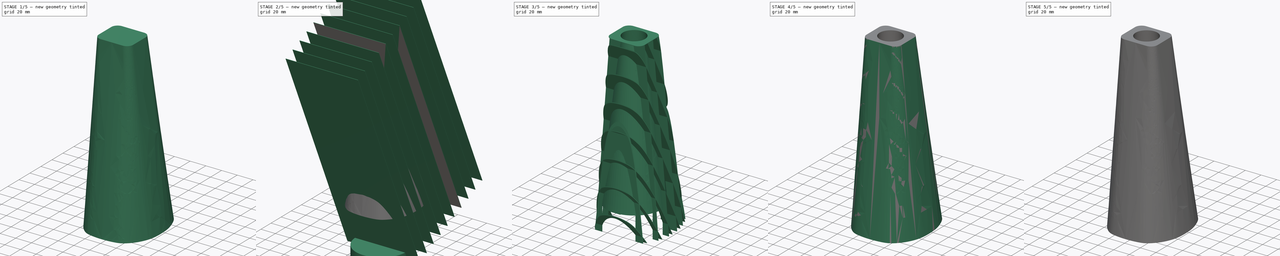
[diagram: build sequence overview — one tinted view per stage of 5, left to right]
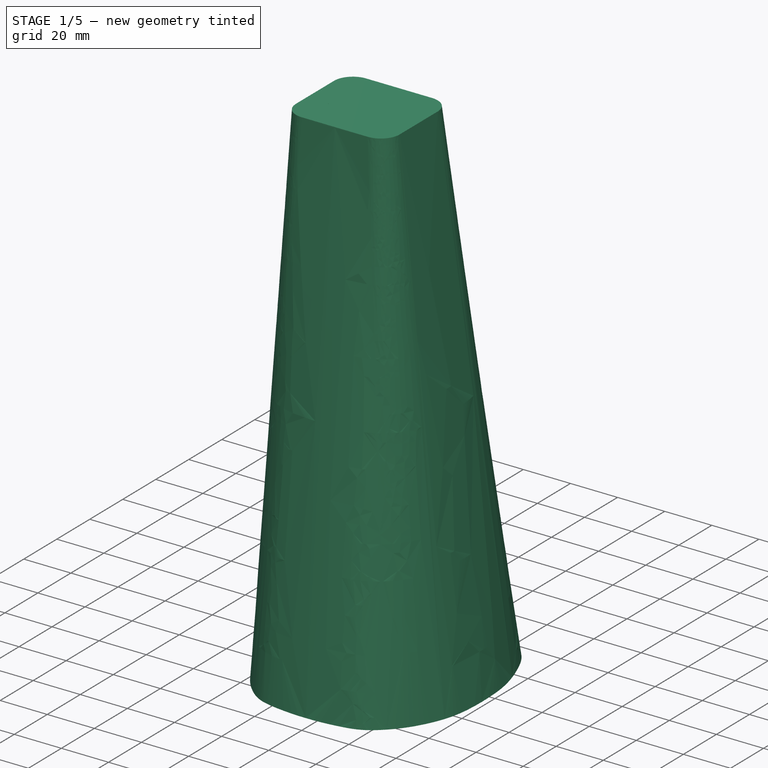
[diagram: stage 1 of 5 — iso view after this stage's code; geometry added in this stage tinted green]
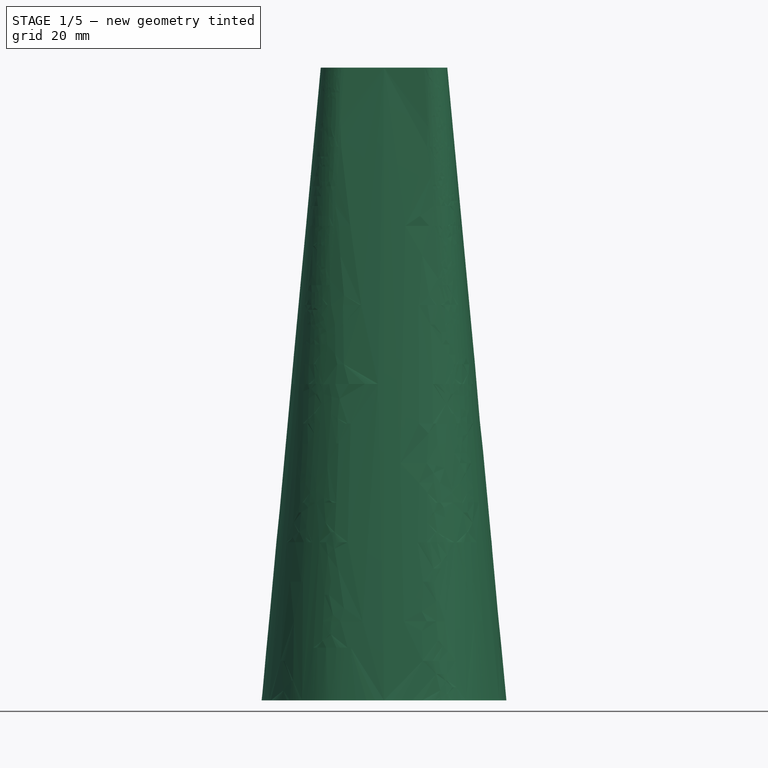
[diagram: stage 1 of 5 — front view after this stage's code; geometry added in this stage tinted green]
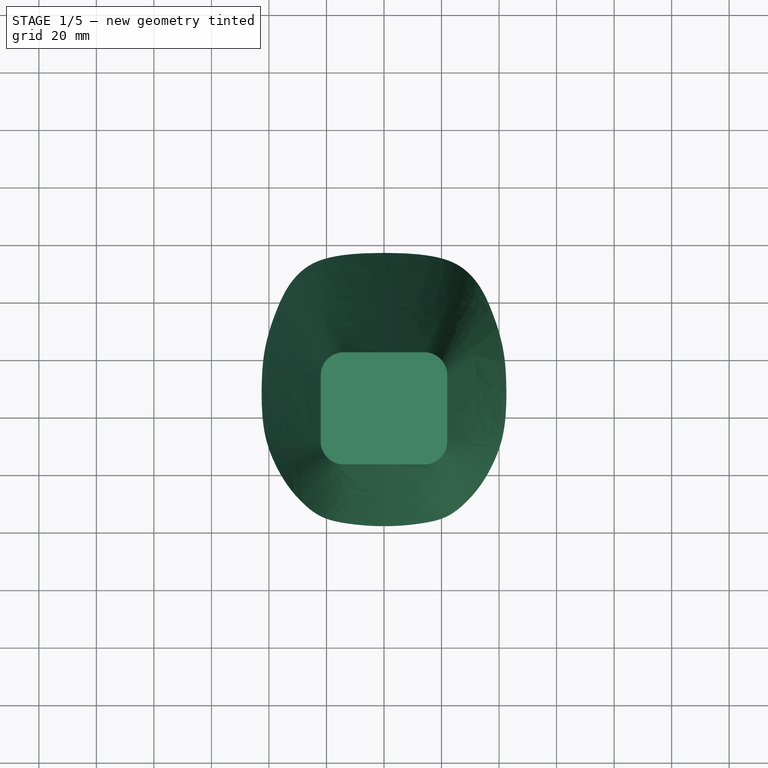
[diagram: stage 1 of 5 — top view after this stage's code; geometry added in this stage tinted green]
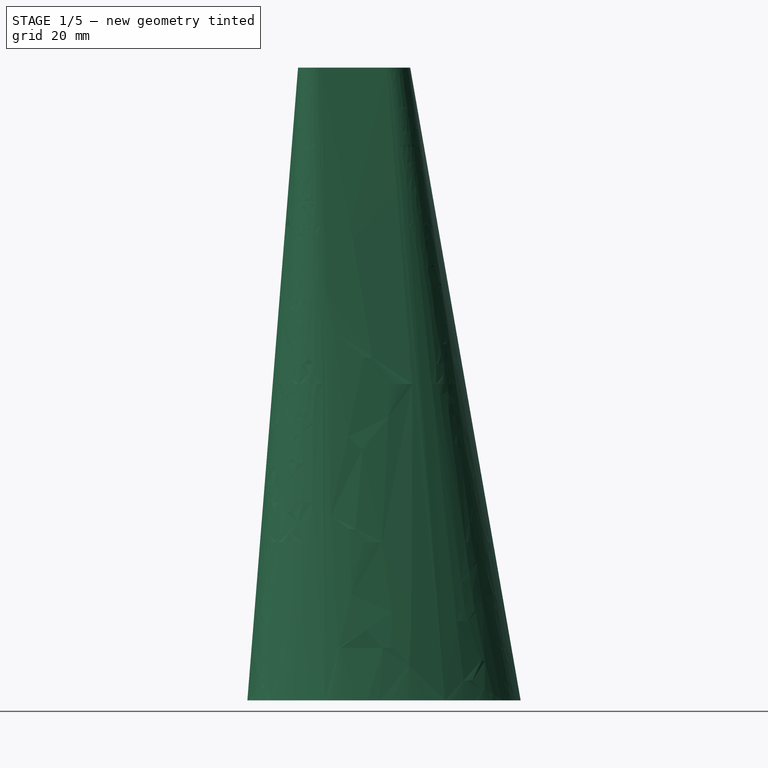
[diagram: stage 1 of 5 — right view after this stage's code; geometry added in this stage tinted green]
FCSTD DOCUMENT  (FreeCAD 0.21R33771 (Git))
Label: tail
License: All rights reserved
LicenseURL: http://en.wikipedia.org/wiki/All_rights_reserved
objects: Sketcher::SketchObject×20, PartDesign::Body×11, PartDesign::AdditiveLoft×7, Part::MultiFuse×6, PartDesign::Pad×4, Part::MultiCommon×4, PartDesign::Thickness×3, Part::Box×3, Part::Cut×3, Part::FeaturePython×2, Image::ImagePlane×1, PartDesign::Pocket×1, App::Part×1
note: 77 computed .brp shape members not serialized (recipe doc carries the construction recipe); baked Part::Feature solids carry a one-line shape summary decoded from their .brp

FEATURE [Sketcher::SketchObject] Sketch020
  AttachmentOffset = pos=(0,0,300) rot=(0,0,1;0rad)
  FullyConstrained = true
  MapMode = 5
  Placement = pos=(0,0,300) rot=(0,0,1;0rad)
  Support = -> [XY_Plane024]
  sketch-geometry (8):
    g0: LineSegment StartX=-14 StartY=19 StartZ=0 EndX=14 EndY=19 EndZ=0
    g1: LineSegment StartX=-14 StartY=-20 StartZ=0 EndX=14 EndY=-20 EndZ=0
    g2: LineSegment StartX=22 StartY=11 StartZ=0 EndX=22 EndY=-12 EndZ=0
    g3: LineSegment StartX=-22 StartY=11 StartZ=0 EndX=-22 EndY=-12 EndZ=0
    g4: ArcOfCircle CenterX=-14 CenterY=11 CenterZ=0 NormalX=0 NormalY=0 NormalZ=1 AngleXU=0 Radius=8 StartAngle=1.5708 EndAngle=3.14159
    g5: ArcOfCircle CenterX=14 CenterY=11 CenterZ=0 NormalX=0 NormalY=0 NormalZ=1 AngleXU=0 Radius=8 StartAngle=0 EndAngle=1.5708
    g6: ArcOfCircle CenterX=14 CenterY=-12 CenterZ=0 NormalX=0 NormalY=0 NormalZ=1 AngleXU=0 Radius=8 StartAngle=4.71239 EndAngle=6.28319
    g7: ArcOfCircle CenterX=-14 CenterY=-12 CenterZ=0 NormalX=0 NormalY=0 NormalZ=1 AngleXU=0 Radius=8 StartAngle=3.14159 EndAngle=4.71239
  constraints (20):
    c: Horizontal(g0)
    c: Horizontal(g1)
    c: Vertical(g2)
    c: Vertical(g3)
    c: Equal(g2,g3)
    c: Tangent(g0,g4) = 1.5708
    c: Tangent(g3,g4) = -1.5708
    c: Tangent(g0,g5) = 1.5708
    c: Tangent(g2,g5) = 1.5708
    c: Tangent(g2,g6) = 1.5708
    c: Tangent(g1,g6) = -1.5708
    c: Tangent(g3,g7) = -1.5708
    c: Tangent(g1,g7) = -1.5708
    c: DistanceX(g0,g-1) = 14
    c: DistanceX(g-1,g0) = 14
    c: DistanceX(g1,g-1) = 14
    c: DistanceX(g-1,g1) = 14
    c: DistanceY(g-1,g0) = 19
    c: DistanceY(g1,g-1) = 20
    c: DistanceX(g3,g-1) = 22
FEATURE [Sketcher::SketchObject] Sketch021
  AttachmentOffset = pos=(0,0,80) rot=(0,0,1;0rad)
  FullyConstrained = false
  MapMode = 5
  Placement = pos=(0,0,80) rot=(0,0,1;0rad)
  Support = -> [XY_Plane015]
  sketch-geometry (28):
    g0-g13: Circle x14 (B-spline internal-alignment scaffolding for g14; pole/knot coordinates omitted)
    g14: BSplineCurve PolesCount=14 KnotsCount=12 Degree=3 IsPeriodic=0
    g15-g26: GeomPoint x12 (B-spline internal-alignment scaffolding for g14; pole/knot coordinates omitted)
    g27: BSplineCurve PolesCount=14 KnotsCount=12 Degree=3 IsPeriodic=0
  constraints (6):
    c: Weight(g0) = 1
    c: PointOnObject(g14,g-2)
    c: Equal(g0, g1-g13) x13
    c: PointOnObject(g14,g-2)
    c: InternalAlignment(g0-g13 -> g14) x14
    c: InternalAlignment(g15-g26 -> g14) x12
FEATURE [PartDesign::AdditiveLoft] AdditiveLoft001
  Closed = false
  Profile = -> Sketch020
  Ruled = false
  Sections = -> [Sketch021]
FEATURE [Sketcher::SketchObject] Sketch022
  AttachmentOffset = pos=(0,0,300) rot=(0,0,1;0rad)
  FullyConstrained = true
  MapMode = 5
  Placement = pos=(0,0,300) rot=(0,0,1;0rad)
  Support = -> [XY_Plane025]
  sketch-geometry (8):
    g0: LineSegment StartX=-14 StartY=19 StartZ=0 EndX=14 EndY=19 EndZ=0
    g1: LineSegment StartX=-14 StartY=-20 StartZ=0 EndX=14 EndY=-20 EndZ=0
    g2: LineSegment StartX=22 StartY=11 StartZ=0 EndX=22 EndY=-12 EndZ=0
    g3: LineSegment StartX=-22 StartY=11 StartZ=0 EndX=-22 EndY=-12 EndZ=0
    g4: ArcOfCircle CenterX=-14 CenterY=11 CenterZ=0 NormalX=0 NormalY=0 NormalZ=1 AngleXU=0 Radius=8 StartAngle=1.5708 EndAngle=3.14159
    g5: ArcOfCircle CenterX=14 CenterY=11 CenterZ=0 NormalX=0 NormalY=0 NormalZ=1 AngleXU=0 Radius=8 StartAngle=0 EndAngle=1.5708
    g6: ArcOfCircle CenterX=14 CenterY=-12 CenterZ=0 NormalX=0 NormalY=0 NormalZ=1 AngleXU=0 Radius=8 StartAngle=4.71239 EndAngle=6.28319
    g7: ArcOfCircle CenterX=-14 CenterY=-12 CenterZ=0 NormalX=0 NormalY=0 NormalZ=1 AngleXU=0 Radius=8 StartAngle=3.14159 EndAngle=4.71239
  constraints (20):
    c: Horizontal(g0)
    c: Horizontal(g1)
    c: Vertical(g2)
    c: Vertical(g3)
    c: Equal(g2,g3)
    c: Tangent(g0,g4) = 1.5708
    c: Tangent(g3,g4) = -1.5708
    c: Tangent(g0,g5) = 1.5708
    c: Tangent(g2,g5) = 1.5708
    c: Tangent(g2,g6) = 1.5708
    c: Tangent(g1,g6) = -1.5708
    c: Tangent(g3,g7) = -1.5708
    c: Tangent(g1,g7) = -1.5708
    c: DistanceX(g0,g-1) = 14
    c: DistanceX(g-1,g0) = 14
    c: DistanceX(g1,g-1) = 14
    c: DistanceX(g-1,g1) = 14
    c: DistanceY(g-1,g0) = 19
    c: DistanceY(g1,g-1) = 20
    c: DistanceX(g3,g-1) = 22
FEATURE [Sketcher::SketchObject] Sketch023
  AttachmentOffset = pos=(0,0,80) rot=(0,0,1;0rad)
  FullyConstrained = false
  MapMode = 5
  Placement = pos=(0,0,80) rot=(0,0,1;0rad)
  Support = -> [XY_Plane016]
  sketch-geometry (28):
    g0-g13: Circle x14 (B-spline internal-alignment scaffolding for g14; pole/knot coordinates omitted)
    g14: BSplineCurve PolesCount=14 KnotsCount=12 Degree=3 IsPeriodic=0
    g15-g26: GeomPoint x12 (B-spline internal-alignment scaffolding for g14; pole/knot coordinates omitted)
    g27: BSplineCurve PolesCount=14 KnotsCount=12 Degree=3 IsPeriodic=0
  constraints (6):
    c: Weight(g0) = 1
    c: PointOnObject(g14,g-2)
    c: Equal(g0, g1-g13) x13
    c: PointOnObject(g14,g-2)
    c: InternalAlignment(g0-g13 -> g14) x14
    c: InternalAlignment(g15-g26 -> g14) x12
FEATURE [PartDesign::AdditiveLoft] AdditiveLoft002
  Closed = false
  Profile = -> Sketch022
  Ruled = false
  Sections = -> [Sketch023]
FEATURE [Sketcher::SketchObject] Sketch031
  AttachmentOffset = pos=(0,0,110) rot=(0,0,1;0rad)
  FullyConstrained = true
  MapMode = 5
  Placement = pos=(0,0,110) rot=(0,0,1;0rad)
  Support = -> [XY_Plane029]
  sketch-geometry (1):
    g0: Circle CenterX=0 CenterY=0 CenterZ=0 NormalX=0 NormalY=0 NormalZ=1 AngleXU=0 Radius=34.62
  constraints (2):
    c: Coincident(g0,g-1)
    c: Radius(g0) = 34.62
FEATURE [Sketcher::SketchObject] Sketch032
  AttachmentOffset = pos=(0,0,300) rot=(0,0,1;0rad)
  FullyConstrained = true
  MapMode = 5
  Placement = pos=(0,0,300) rot=(0,0,1;0rad)
  Support = -> [XY_Plane029]
  sketch-geometry (1):
    g0: Circle CenterX=0 CenterY=0 CenterZ=0 NormalX=0 NormalY=0 NormalZ=1 AngleXU=0 Radius=14
  constraints (2):
    c: Coincident(g0,g-1)
    c: Radius(g0) = 14
FEATURE [PartDesign::AdditiveLoft] AdditiveLoft005
  Closed = false
  Profile = -> Sketch031
  Ruled = false
  Sections = -> [Sketch032]
FEATURE [Part::Box] Box  label="Cube"
  AttacherType = Attacher::AttachEngine3D
  Height = 0.4
  Length = 200
  Placement = pos=(-122,-61,299.6) rot=(0,0,1;0rad)
  Width = 200
FEATURE [Sketcher::SketchObject] Sketch034
  AttachmentOffset = pos=(0,0,80) rot=(0,0,1;0rad)
  FullyConstrained = false
  MapMode = 5
  Placement = pos=(0,0,80) rot=(0,0,1;0rad)
  Support = -> [XY_Plane030]
  sketch-geometry (28):
    g0-g13: Circle x14 (B-spline internal-alignment scaffolding for g14; pole/knot coordinates omitted)
    g14: BSplineCurve PolesCount=14 KnotsCount=12 Degree=3 IsPeriodic=0
    g15-g26: GeomPoint x12 (B-spline internal-alignment scaffolding for g14; pole/knot coordinates omitted)
    g27: BSplineCurve PolesCount=14 KnotsCount=12 Degree=3 IsPeriodic=0
  constraints (6):
    c: Weight(g0) = 1
    c: PointOnObject(g14,g-2)
    c: Equal(g0, g1-g13) x13
    c: PointOnObject(g14,g-2)
    c: InternalAlignment(g0-g13 -> g14) x14
    c: InternalAlignment(g15-g26 -> g14) x12
FEATURE [Sketcher::SketchObject] Sketch035
  AttachmentOffset = pos=(0,0,300) rot=(0,0,1;0rad)
  FullyConstrained = true
  MapMode = 5
  Placement = pos=(0,0,300) rot=(0,0,1;0rad)
  Support = -> [XY_Plane031]
  sketch-geometry (8):
    g0: LineSegment StartX=-14 StartY=19 StartZ=0 EndX=14 EndY=19 EndZ=0
    g1: LineSegment StartX=-14 StartY=-20 StartZ=0 EndX=14 EndY=-20 EndZ=0
    g2: LineSegment StartX=22 StartY=11 StartZ=0 EndX=22 EndY=-12 EndZ=0
    g3: LineSegment StartX=-22 StartY=11 StartZ=0 EndX=-22 EndY=-12 EndZ=0
    g4: ArcOfCircle CenterX=-14 CenterY=11 CenterZ=0 NormalX=0 NormalY=0 NormalZ=1 AngleXU=0 Radius=8 StartAngle=1.5708 EndAngle=3.14159
    g5: ArcOfCircle CenterX=14 CenterY=11 CenterZ=0 NormalX=0 NormalY=0 NormalZ=1 AngleXU=0 Radius=8 StartAngle=0 EndAngle=1.5708
    g6: ArcOfCircle CenterX=14 CenterY=-12 CenterZ=0 NormalX=0 NormalY=0 NormalZ=1 AngleXU=0 Radius=8 StartAngle=4.71239 EndAngle=6.28319
    g7: ArcOfCircle CenterX=-14 CenterY=-12 CenterZ=0 NormalX=0 NormalY=0 NormalZ=1 AngleXU=0 Radius=8 StartAngle=3.14159 EndAngle=4.71239
  constraints (20):
    c: Horizontal(g0)
    c: Horizontal(g1)
    c: Vertical(g2)
    c: Vertical(g3)
    c: Equal(g2,g3)
    c: Tangent(g0,g4) = 1.5708
    c: Tangent(g3,g4) = -1.5708
    c: Tangent(g0,g5) = 1.5708
    c: Tangent(g2,g5) = 1.5708
    c: Tangent(g2,g6) = 1.5708
    c: Tangent(g1,g6) = -1.5708
    c: Tangent(g3,g7) = -1.5708
    c: Tangent(g1,g7) = -1.5708
    c: DistanceX(g0,g-1) = 14
    c: DistanceX(g-1,g0) = 14
    c: DistanceX(g1,g-1) = 14
    c: DistanceX(g-1,g1) = 14
    c: DistanceY(g-1,g0) = 19
    c: DistanceY(g1,g-1) = 20
    c: DistanceX(g3,g-1) = 22
FEATURE [Sketcher::SketchObject] Sketch036
  AttachmentOffset = pos=(0,0,80) rot=(0,0,1;0rad)
  FullyConstrained = false
  MapMode = 5
  Placement = pos=(0,0,80) rot=(0,0,1;0rad)
  Support = -> [XY_Plane032]
  sketch-geometry (28):
    g0-g13: Circle x14 (B-spline internal-alignment scaffolding for g14; pole/knot coordinates omitted)
    g14: BSplineCurve PolesCount=14 KnotsCount=12 Degree=3 IsPeriodic=0
    g15-g26: GeomPoint x12 (B-spline internal-alignment scaffolding for g14; pole/knot coordinates omitted)
    g27: BSplineCurve PolesCount=14 KnotsCount=12 Degree=3 IsPeriodic=0
  constraints (6):
    c: Weight(g0) = 1
    c: PointOnObject(g14,g-2)
    c: Equal(g0, g1-g13) x13
    c: PointOnObject(g14,g-2)
    c: InternalAlignment(g0-g13 -> g14) x14
    c: InternalAlignment(g15-g26 -> g14) x12
FEATURE [PartDesign::AdditiveLoft] AdditiveLoft006
  Closed = false
  Profile = -> Sketch035
  Ruled = false
  Sections = -> [Sketch036]
FEATURE [Sketcher::SketchObject] Sketch037
  AttachmentOffset = pos=(0,0,300) rot=(0,0,1;0rad)
  FullyConstrained = true
  MapMode = 5
  Placement = pos=(0,0,300) rot=(0,0,1;0rad)
  Support = -> [XY_Plane031]
  sketch-geometry (1):
    g0: Circle CenterX=0 CenterY=0 CenterZ=0 NormalX=0 NormalY=0 NormalZ=1 AngleXU=0 Radius=14
  constraints (2):
    c: Coincident(g0,g-1)
    c: Radius(g0) = 14
FEATURE [PartDesign::Pocket] Pocket
  BaseFeature = -> AdditiveLoft006
  Direction = (0,0,-1)
  Length = 1
  Length2 = 5
  Profile = -> Sketch037
  ReferenceAxis = -> Sketch037 [N_Axis]
  Type = 0
FEATURE [PartDesign::Body] Body007
  Group = -> [AdditiveLoft006,Sketch035,Sketch037,Pocket]
  Origin = -> Origin011
  Tip = -> Pocket
FEATURE [Part::MultiCommon] Common003
  Shapes = -> [Box,Body007]
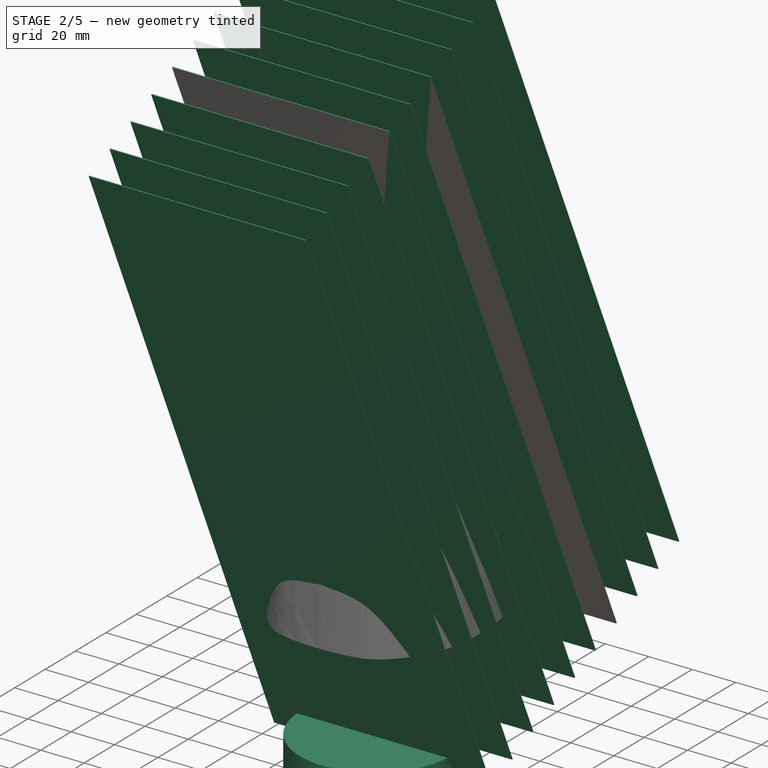
[diagram: stage 2 of 5 — iso view after this stage's code; geometry added in this stage tinted green]
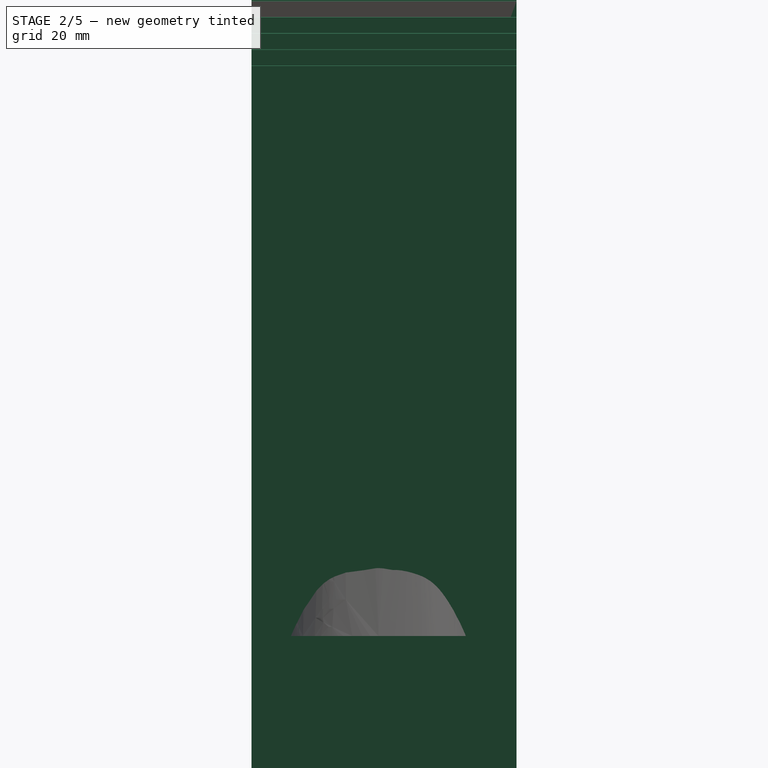
[diagram: stage 2 of 5 — front view after this stage's code; geometry added in this stage tinted green]
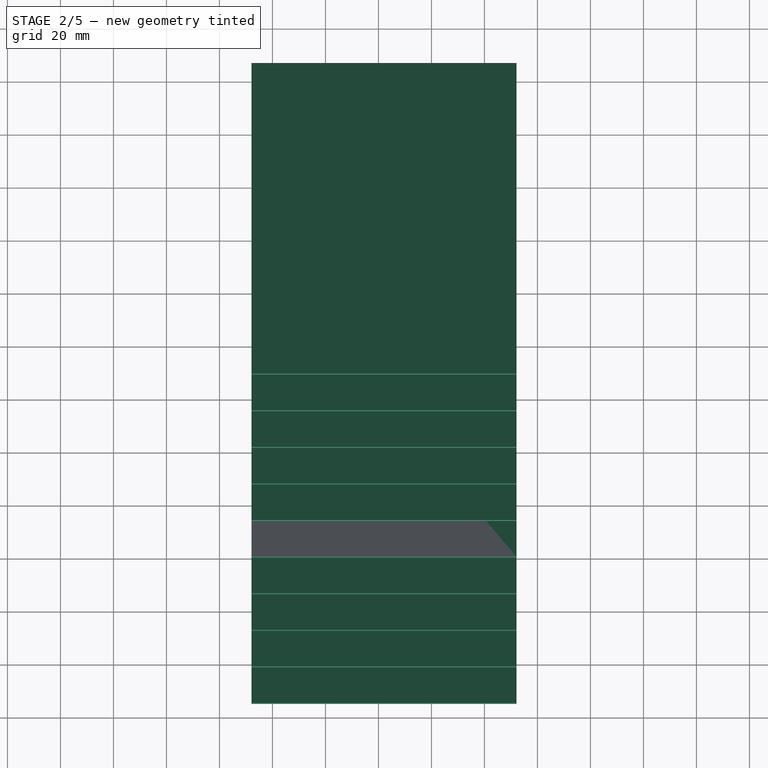
[diagram: stage 2 of 5 — top view after this stage's code; geometry added in this stage tinted green]
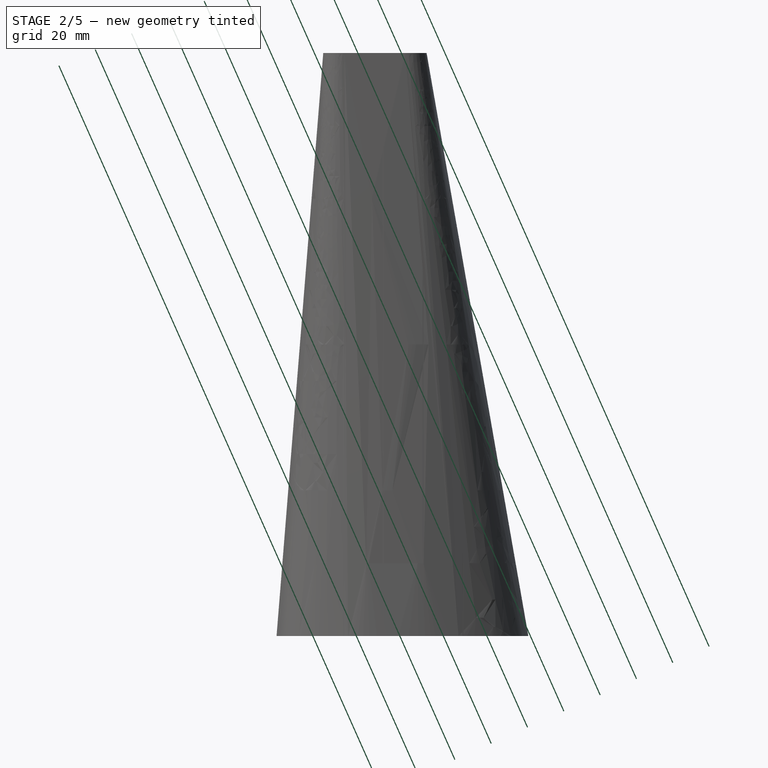
[diagram: stage 2 of 5 — right view after this stage's code; geometry added in this stage tinted green]
FEATURE [PartDesign::Body] Body
  Group = -> [Sketch016,Sketch,AdditiveLoft,Thickness]
  Origin = -> Origin
  Tip = -> Thickness
FEATURE [Sketcher::SketchObject] Sketch019
  FullyConstrained = true
  MapMode = 5
  Support = -> [XY_Plane014]
  sketch-geometry (5):
    g0: LineSegment StartX=-5 StartY=44.255 StartZ=0 EndX=5 EndY=44.255 EndZ=0
    g1: LineSegment StartX=5 StartY=44.255 StartZ=0 EndX=5 EndY=34.255 EndZ=0
    g2: LineSegment StartX=5 StartY=34.255 StartZ=0 EndX=-5 EndY=34.255 EndZ=0
    g3: LineSegment StartX=-5 StartY=34.255 StartZ=0 EndX=-5 EndY=44.255 EndZ=0
    g4: ArcOfCircle CenterX=0 CenterY=0 CenterZ=0 NormalX=0 NormalY=0 NormalZ=1 AngleXU=0 Radius=34.618 StartAngle=1.71574 EndAngle=7.70904
  constraints (14):
    c: Coincident(g0,g1)
    c: Coincident(g1,g2)
    c: Coincident(g2,g3)
    c: Coincident(g3,g0)
    c: Horizontal(g0)
    c: Horizontal(g2)
    c: Vertical(g1)
    c: Vertical(g3)
    c: DistanceX(g2,g2) = 10
    c: DistanceY(g1,g1) = 10
    c: DistanceY(g-1,g1) = 34.255
    c: Coincident(g4,g-1)
    c: Coincident(g4,g2)
    c: Coincident(g4,g1)
FEATURE [Part::Box] Box001  label="Cube001"
  AttacherType = Attacher::AttachEngine3D
  Height = 300
  Length = 100
  Placement = pos=(-47.9,0,-5) rot=(0,0,1;0rad)
  Width = 0.4
FEATURE [Part::FeaturePython] Array001  # Draft array (typed FeaturePython)
  AlwaysSyncPlacement = false
  Angle = 360
  ArrayType = 0
  Axis = (0,0,1)
  Base = -> Box001
  Center = (0,0,0)
  Count = 10
  ExpandArray = false
  Fuse = false
  IntervalAxis = (0,0,0)
  IntervalX = (100,0,0)
  IntervalY = (0,15,0)
  IntervalZ = (0,0,35)
  NumberCircles = 3
  NumberPolar = 5
  NumberX = 1
  NumberY = 10
  NumberZ = 1
  Placement = pos=(0,-57.5,43) rot=(0,0,1;0rad)
  PlacementList = 10 placements: arithmetic series from (-47.9,0,-5) step (0,15,0) to (-47.9,135,-5)
  RadialDistance = 50
  ScaleList = (10) [(1,1,1),(1,1,1),(1,1,1),(1,1,1),(1,1,1),(1,1,1),(1,1,1),(1,1,1),(1,1,1),(1,1,1)]
  Symmetry = 1
  TangentialDistance = 25
FEATURE [Part::Box] Box002  label="Cube002"
  AttacherType = Attacher::AttachEngine3D
  Height = 300
  Length = 100
  Placement = pos=(-47.9,0,-5) rot=(0,0,1;0rad)
  Width = 0.4
FEATURE [Part::FeaturePython] Array002  # Draft array (typed FeaturePython)
  AlwaysSyncPlacement = false
  Angle = 360
  ArrayType = 0
  Axis = (0,0,1)
  Base = -> Box002
  Center = (0,0,0)
  Count = 10
  ExpandArray = false
  Fuse = false
  IntervalAxis = (0,0,0)
  IntervalX = (100,0,0)
  IntervalY = (0,15,0)
  IntervalZ = (0,0,35)
  NumberCircles = 3
  NumberPolar = 5
  NumberX = 1
  NumberY = 10
  NumberZ = 1
  Placement = pos=(0,0.0533638,25.6244) rot=(1,0,0;0.418879rad)
  PlacementList = 10 placements: arithmetic series from (-47.9,0,-5) step (0,15,0) to (-47.9,135,-5)
  RadialDistance = 50
  ScaleList = (10) [(1,1,1),(1,1,1),(1,1,1),(1,1,1),(1,1,1),(1,1,1),(1,1,1),(1,1,1),(1,1,1),(1,1,1)]
  Symmetry = 1
  TangentialDistance = 25
FEATURE [PartDesign::Body] Body001
  Group = -> [Sketch019,Pad,Thickness001]
  Origin = -> Origin001
  Placement = pos=(0,0,80) rot=(0,0,1;0rad)
  Tip = -> Thickness001
FEATURE [Sketcher::SketchObject] Sketch024
  FullyConstrained = true
  MapMode = 5
  Support = -> [XY_Plane018]
  sketch-geometry (5):
    g0: LineSegment StartX=-5 StartY=44.255 StartZ=0 EndX=5 EndY=44.255 EndZ=0
    g1: LineSegment StartX=5 StartY=44.255 StartZ=0 EndX=5 EndY=34.255 EndZ=0
    g2: LineSegment StartX=5 StartY=34.255 StartZ=0 EndX=-5 EndY=34.255 EndZ=0
    g3: LineSegment StartX=-5 StartY=34.255 StartZ=0 EndX=-5 EndY=44.255 EndZ=0
    g4: ArcOfCircle CenterX=0 CenterY=0 CenterZ=0 NormalX=0 NormalY=0 NormalZ=1 AngleXU=0 Radius=34.618 StartAngle=1.71574 EndAngle=7.70904
  constraints (14):
    c: Coincident(g0,g1)
    c: Coincident(g1,g2)
    c: Coincident(g2,g3)
    c: Coincident(g3,g0)
    c: Horizontal(g0)
    c: Horizontal(g2)
    c: Vertical(g1)
    c: Vertical(g3)
    c: DistanceX(g2,g2) = 10
    c: DistanceY(g1,g1) = 10
    c: DistanceY(g-1,g1) = 34.255
    c: Coincident(g4,g-1)
    c: Coincident(g4,g2)
    c: Coincident(g4,g1)
FEATURE [PartDesign::Pad] Pad001
  Direction = (0,0,1)
  Length = 30
  Length2 = 10
  Profile = -> Sketch024
  ReferenceAxis = -> Sketch024 [N_Axis]
  Type = 0
FEATURE [PartDesign::Body] Body004
  Group = -> [Pad003,Sketch028]
  Origin = -> Origin004
  Placement = pos=(0,0,66) rot=(0,0,1;0rad)
  Tip = -> Pad003
FEATURE [PartDesign::Body] AdditiveLoft001Body
  Group = -> [Sketch020,AdditiveLoft001]
  Origin = -> Origin006
  Tip = -> AdditiveLoft001
FEATURE [Part::MultiCommon] Common001
  Shapes = -> [AdditiveLoft001Body,Array001]
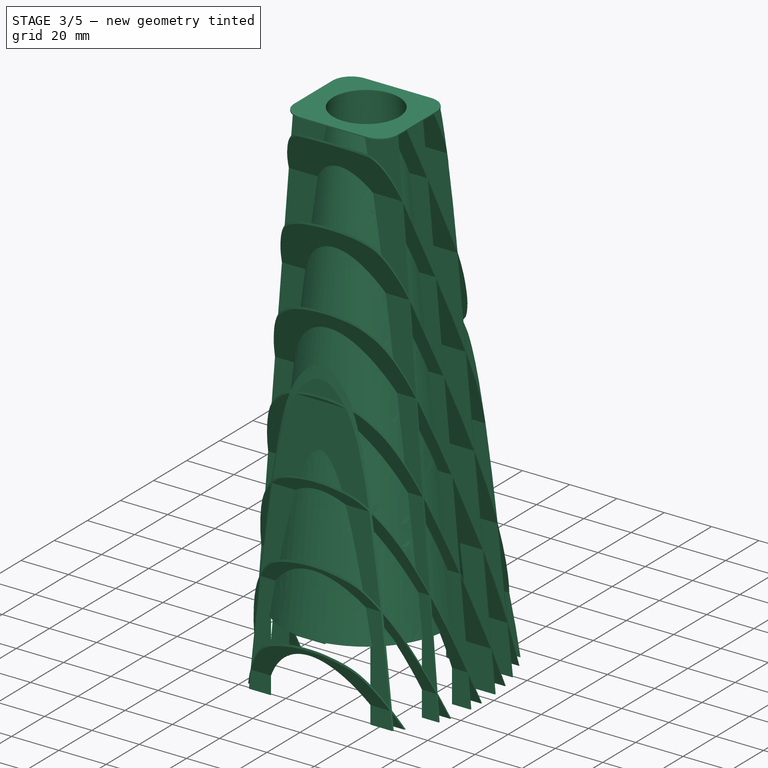
[diagram: stage 3 of 5 — iso view after this stage's code; geometry added in this stage tinted green]
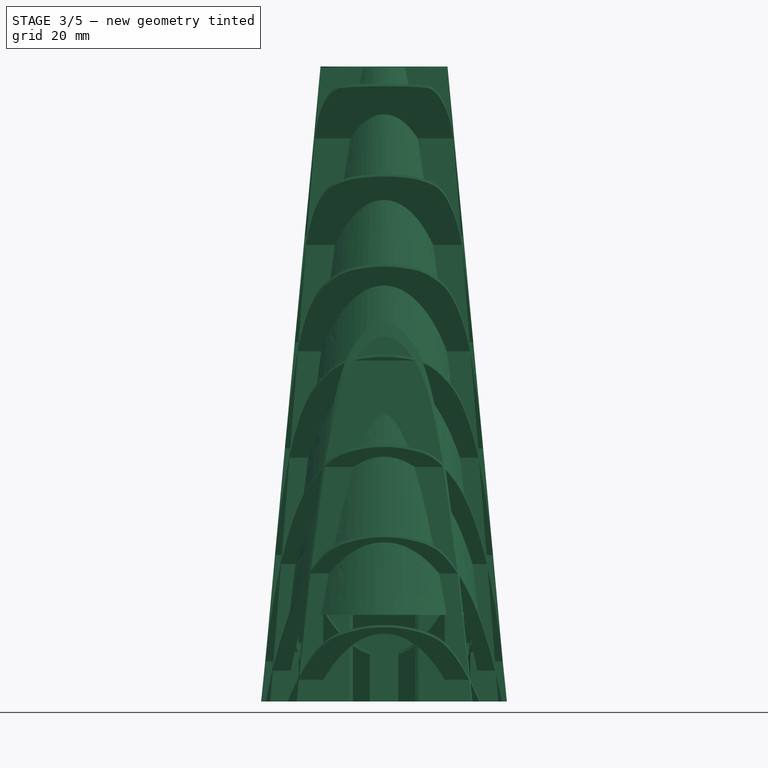
[diagram: stage 3 of 5 — front view after this stage's code; geometry added in this stage tinted green]
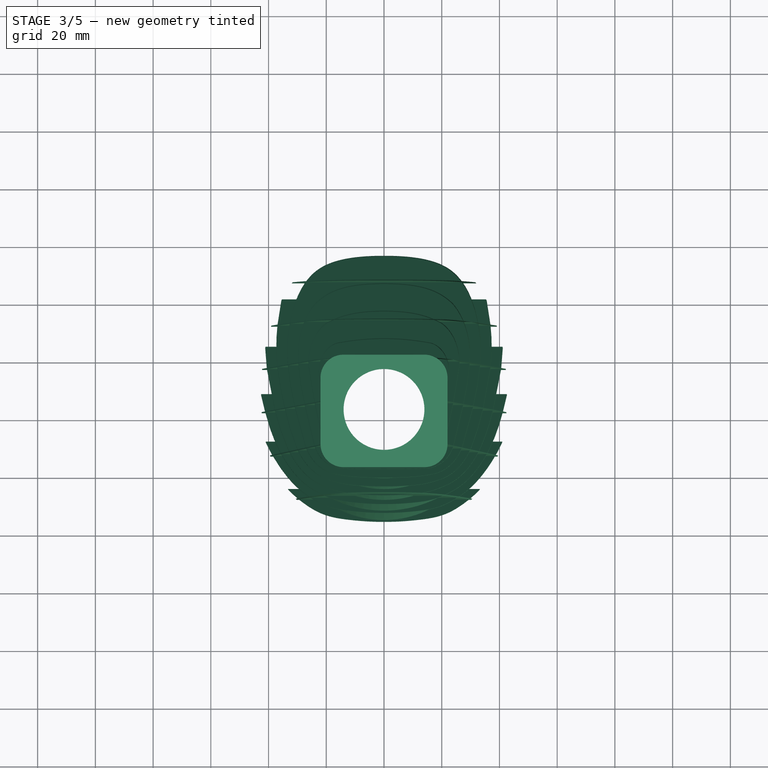
[diagram: stage 3 of 5 — top view after this stage's code; geometry added in this stage tinted green]
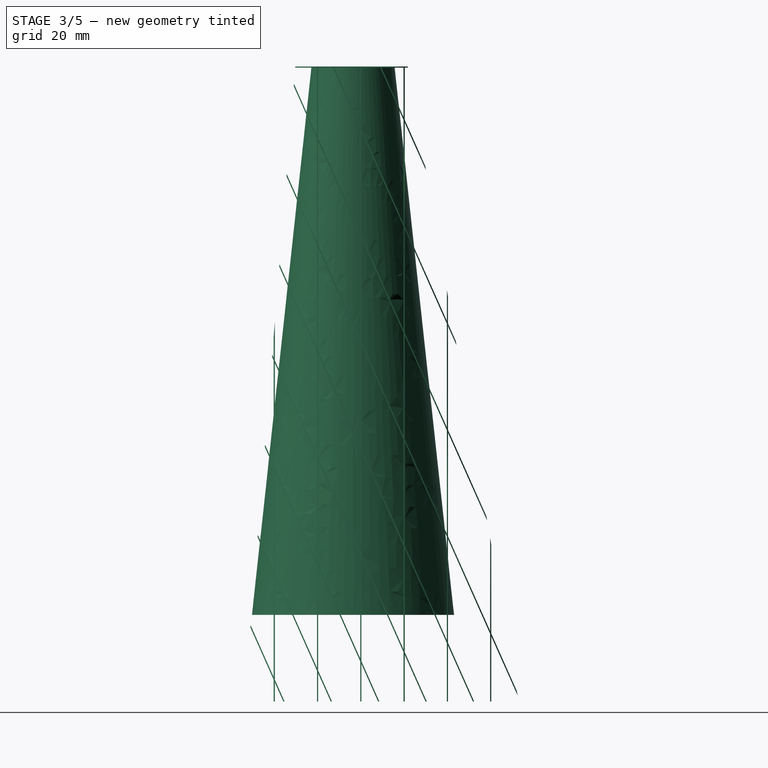
[diagram: stage 3 of 5 — right view after this stage's code; geometry added in this stage tinted green]
FEATURE [PartDesign::Body] AdditiveLoft002Body
  Group = -> [Sketch022,AdditiveLoft002]
  Origin = -> Origin007
  Tip = -> AdditiveLoft002
FEATURE [Part::MultiCommon] Common
  Shapes = -> [AdditiveLoft002Body,Array002]
FEATURE [Part::MultiFuse] Fusion
  Shapes = -> [Common,Common001]
FEATURE [Part::Cut] Cut
  Base = -> Fusion
  Tool = -> Body002
FEATURE [Sketcher::SketchObject] Sketch029
  AttachmentOffset = pos=(0,0,110) rot=(0,0,1;0rad)
  FullyConstrained = true
  MapMode = 5
  Placement = pos=(0,0,110) rot=(0,0,1;0rad)
  Support = -> [XY_Plane027]
  sketch-geometry (1):
    g0: Circle CenterX=0 CenterY=0 CenterZ=0 NormalX=0 NormalY=0 NormalZ=1 AngleXU=0 Radius=34.62
  constraints (2):
    c: Coincident(g0,g-1)
    c: Radius(g0) = 34.62
FEATURE [Sketcher::SketchObject] Sketch030
  AttachmentOffset = pos=(0,0,300) rot=(0,0,1;0rad)
  FullyConstrained = true
  MapMode = 5
  Placement = pos=(0,0,300) rot=(0,0,1;0rad)
  Support = -> [XY_Plane027]
  sketch-geometry (1):
    g0: Circle CenterX=0 CenterY=0 CenterZ=0 NormalX=0 NormalY=0 NormalZ=1 AngleXU=0 Radius=14
  constraints (2):
    c: Coincident(g0,g-1)
    c: Radius(g0) = 14
FEATURE [PartDesign::AdditiveLoft] AdditiveLoft004
  Closed = false
  Profile = -> Sketch029
  Ruled = false
  Sections = -> [Sketch030]
FEATURE [PartDesign::Body] Body006
  Group = -> [Sketch031,Sketch032,AdditiveLoft005]
  Origin = -> Origin010
  Tip = -> AdditiveLoft005
FEATURE [PartDesign::Thickness] Thickness002
  Base = -> AdditiveLoft004 [Face1,Face3]
  BaseFeature = -> AdditiveLoft004
  Intersection = false
  Join = 1
  Mode = 1
  SupportTransform = false
  Value = 0.4
FEATURE [PartDesign::Body] Body005
  Group = -> [Sketch029,Sketch030,AdditiveLoft004,Thickness002]
  Origin = -> Origin009
  Tip = -> Thickness002
FEATURE [Part::Cut] Cut002
  Base = -> Cut
  Tool = -> Body006
FEATURE [Part::MultiFuse] Fusion001
  Shapes = -> [Cut002,Body005]
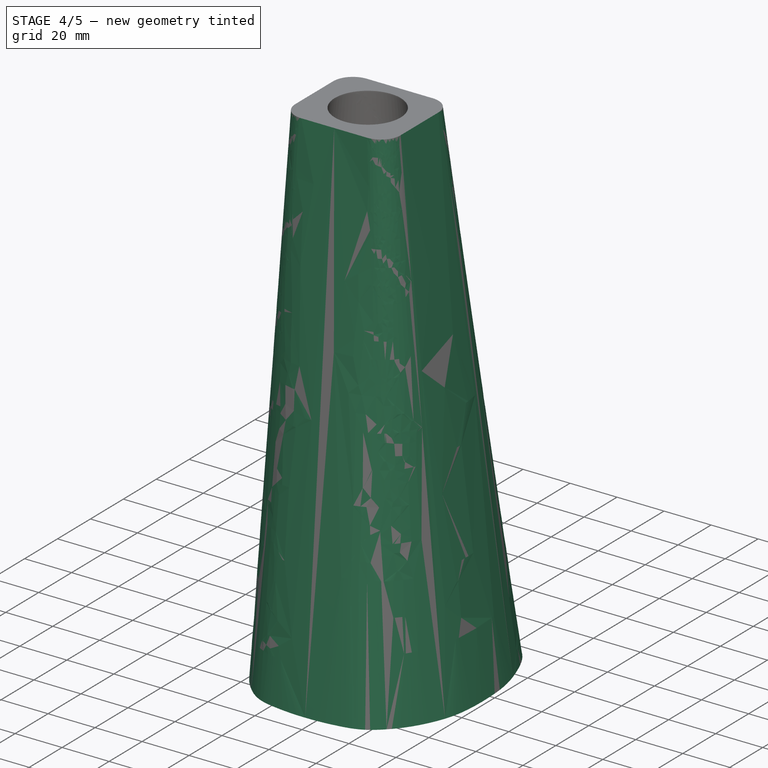
[diagram: stage 4 of 5 — iso view after this stage's code; geometry added in this stage tinted green]
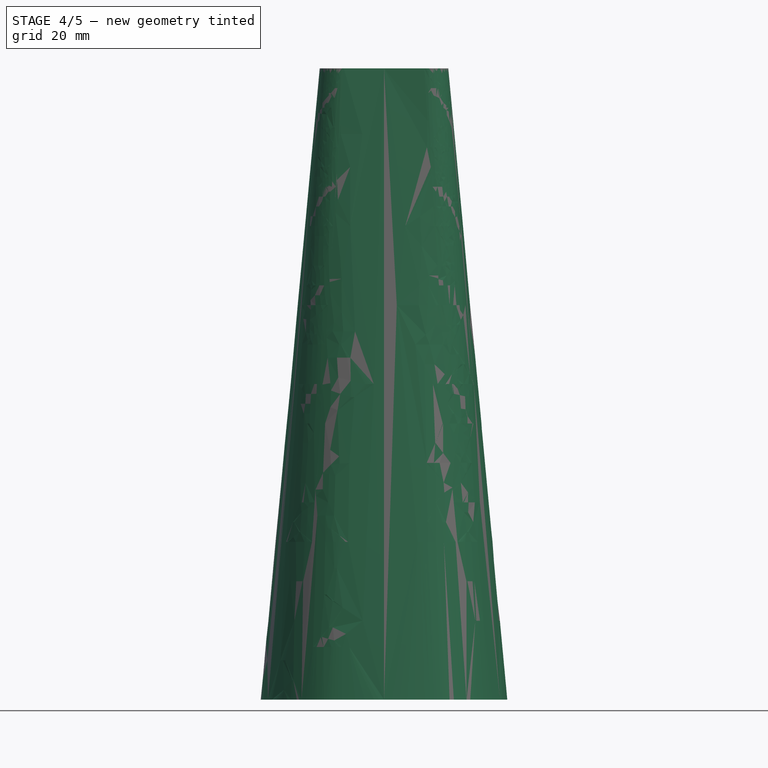
[diagram: stage 4 of 5 — front view after this stage's code; geometry added in this stage tinted green]
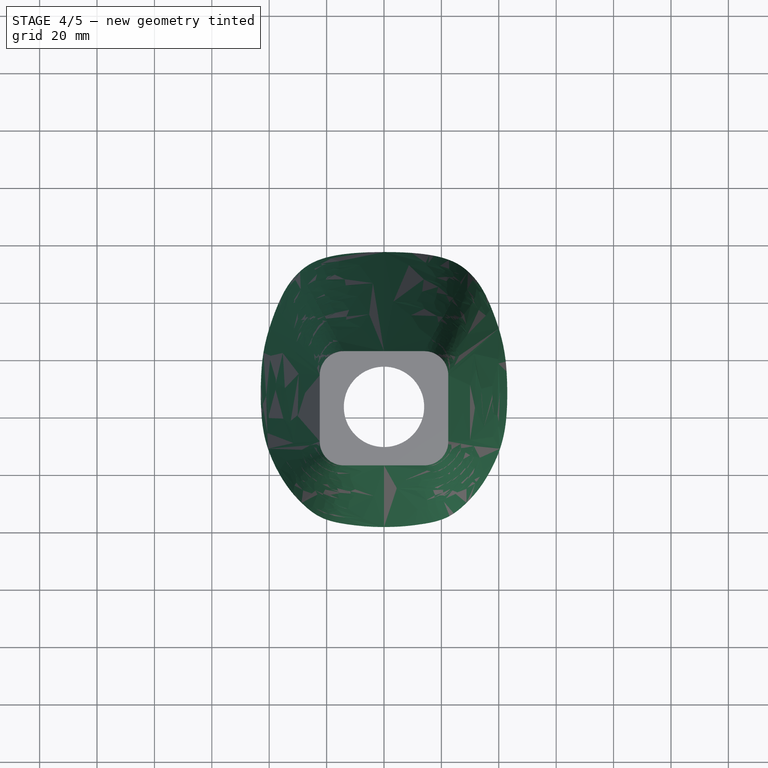
[diagram: stage 4 of 5 — top view after this stage's code; geometry added in this stage tinted green]
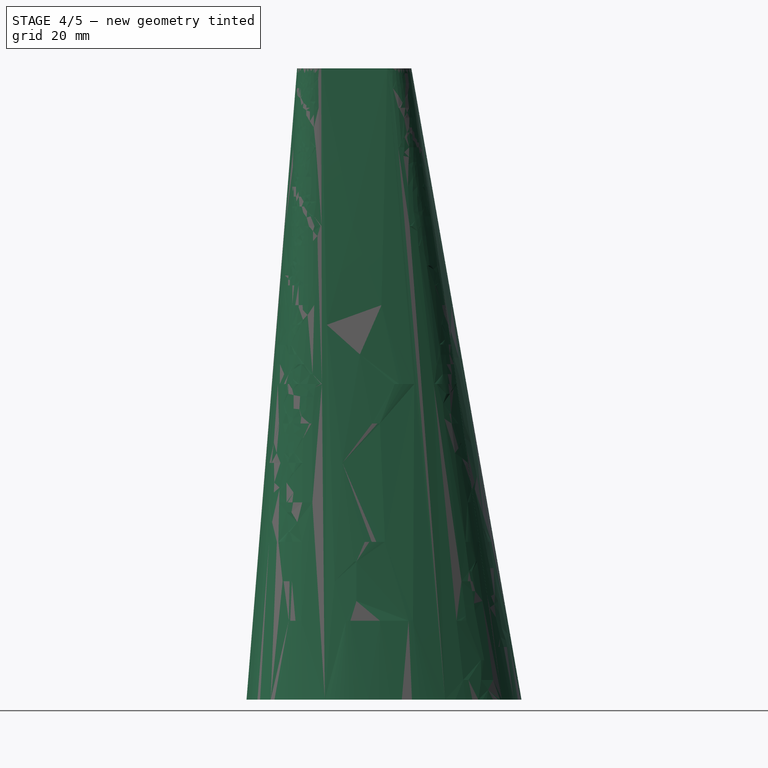
[diagram: stage 4 of 5 — right view after this stage's code; geometry added in this stage tinted green]
FEATURE [Sketcher::SketchObject] Sketch016
  AttachmentOffset = pos=(0,0,80) rot=(0,0,1;0rad)
  FullyConstrained = false
  MapMode = 5
  Placement = pos=(0,0,80) rot=(0,0,1;0rad)
  Support = -> [XY_Plane]
  sketch-geometry (28):
    g0-g13: Circle x14 (B-spline internal-alignment scaffolding for g14; pole/knot coordinates omitted)
    g14: BSplineCurve PolesCount=14 KnotsCount=12 Degree=3 IsPeriodic=0
    g15-g26: GeomPoint x12 (B-spline internal-alignment scaffolding for g14; pole/knot coordinates omitted)
    g27: BSplineCurve PolesCount=14 KnotsCount=12 Degree=3 IsPeriodic=0
  constraints (6):
    c: Weight(g0) = 1
    c: PointOnObject(g14,g-2)
    c: Equal(g0, g1-g13) x13
    c: PointOnObject(g14,g-2)
    c: InternalAlignment(g0-g13 -> g14) x14
    c: InternalAlignment(g15-g26 -> g14) x12
FEATURE [Image::ImagePlane] Screenshot_2024_02_09_151900  label="Screenshot 2024-02-09 151900"
  Placement = pos=(5,-2,0) rot=(0,0,1;0rad)
  XSize = 110.754
  YSize = 103.71
FEATURE [Sketcher::SketchObject] Sketch
  AttachmentOffset = pos=(0,0,300) rot=(0,0,1;0rad)
  FullyConstrained = true
  MapMode = 5
  Placement = pos=(0,0,300) rot=(0,0,1;0rad)
  Support = -> [XY_Plane]
  sketch-geometry (8):
    g0: LineSegment StartX=-14 StartY=19 StartZ=0 EndX=14 EndY=19 EndZ=0
    g1: LineSegment StartX=-14 StartY=-20 StartZ=0 EndX=14 EndY=-20 EndZ=0
    g2: LineSegment StartX=22 StartY=11 StartZ=0 EndX=22 EndY=-12 EndZ=0
    g3: LineSegment StartX=-22 StartY=11 StartZ=0 EndX=-22 EndY=-12 EndZ=0
    g4: ArcOfCircle CenterX=-14 CenterY=11 CenterZ=0 NormalX=0 NormalY=0 NormalZ=1 AngleXU=0 Radius=8 StartAngle=1.5708 EndAngle=3.14159
    g5: ArcOfCircle CenterX=14 CenterY=11 CenterZ=0 NormalX=0 NormalY=0 NormalZ=1 AngleXU=0 Radius=8 StartAngle=0 EndAngle=1.5708
    g6: ArcOfCircle CenterX=14 CenterY=-12 CenterZ=0 NormalX=0 NormalY=0 NormalZ=1 AngleXU=0 Radius=8 StartAngle=4.71239 EndAngle=6.28319
    g7: ArcOfCircle CenterX=-14 CenterY=-12 CenterZ=0 NormalX=0 NormalY=0 NormalZ=1 AngleXU=0 Radius=8 StartAngle=3.14159 EndAngle=4.71239
  constraints (20):
    c: Horizontal(g0)
    c: Horizontal(g1)
    c: Vertical(g2)
    c: Vertical(g3)
    c: Equal(g2,g3)
    c: Tangent(g0,g4) = 1.5708
    c: Tangent(g3,g4) = -1.5708
    c: Tangent(g0,g5) = 1.5708
    c: Tangent(g2,g5) = 1.5708
    c: Tangent(g2,g6) = 1.5708
    c: Tangent(g1,g6) = -1.5708
    c: Tangent(g3,g7) = -1.5708
    c: Tangent(g1,g7) = -1.5708
    c: DistanceX(g0,g-1) = 14
    c: DistanceX(g-1,g0) = 14
    c: DistanceX(g1,g-1) = 14
    c: DistanceX(g-1,g1) = 14
    c: DistanceY(g-1,g0) = 19
    c: DistanceY(g1,g-1) = 20
    c: DistanceX(g3,g-1) = 22
FEATURE [PartDesign::AdditiveLoft] AdditiveLoft
  Closed = false
  Profile = -> Sketch
  Ruled = false
  Sections = -> [Sketch016]
FEATURE [PartDesign::Thickness] Thickness
  Base = -> AdditiveLoft [Face3,Face1]
  BaseFeature = -> AdditiveLoft
  Intersection = true
  Join = 0
  Mode = 0
  SupportTransform = false
  Value = 0.4
FEATURE [PartDesign::Pad] Pad
  Direction = (0,0,1)
  Length = 30
  Length2 = 10
  Profile = -> Sketch019
  ReferenceAxis = -> Sketch019 [N_Axis]
  Type = 0
FEATURE [PartDesign::Thickness] Thickness001
  Base = -> Pad [Face5,Face6]
  BaseFeature = -> Pad
  Intersection = true
  Join = 1
  Mode = 1
  SupportTransform = false
  Value = 0.4
FEATURE [Part::MultiFuse] Fusion002
  Shapes = -> [Body005,Common003,Fusion001]
FEATURE [Part::MultiFuse] Fusion003
  Shapes = -> [Body001,Fusion002]
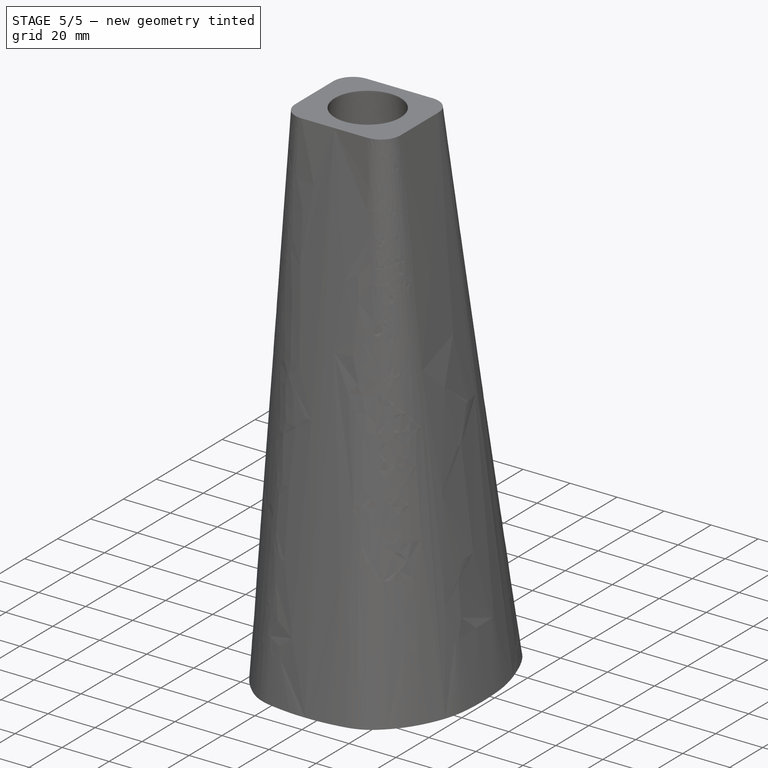
[diagram: stage 5 of 5 — iso view after this stage's code; geometry added in this stage tinted green]
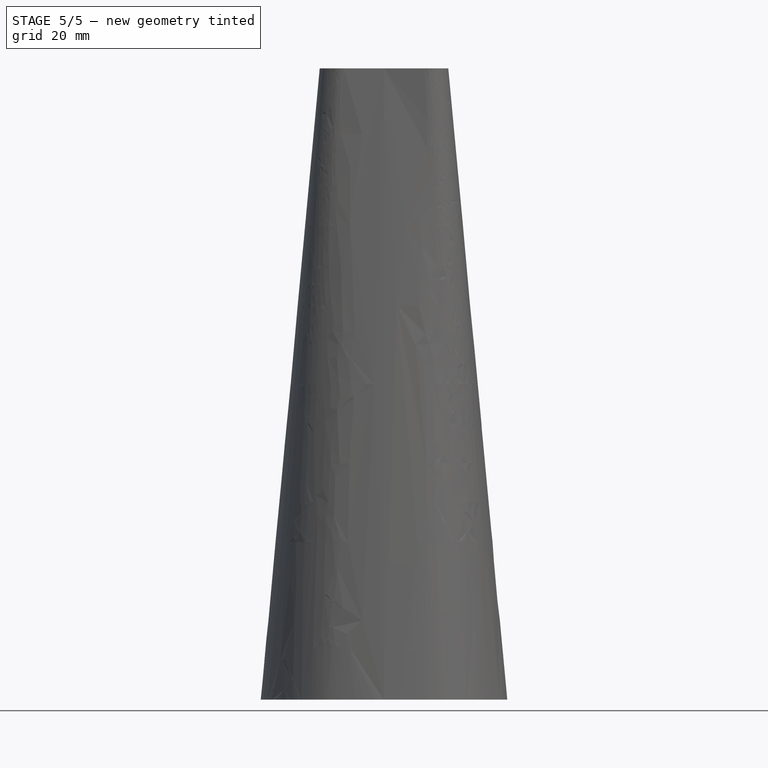
[diagram: stage 5 of 5 — front view after this stage's code; geometry added in this stage tinted green]
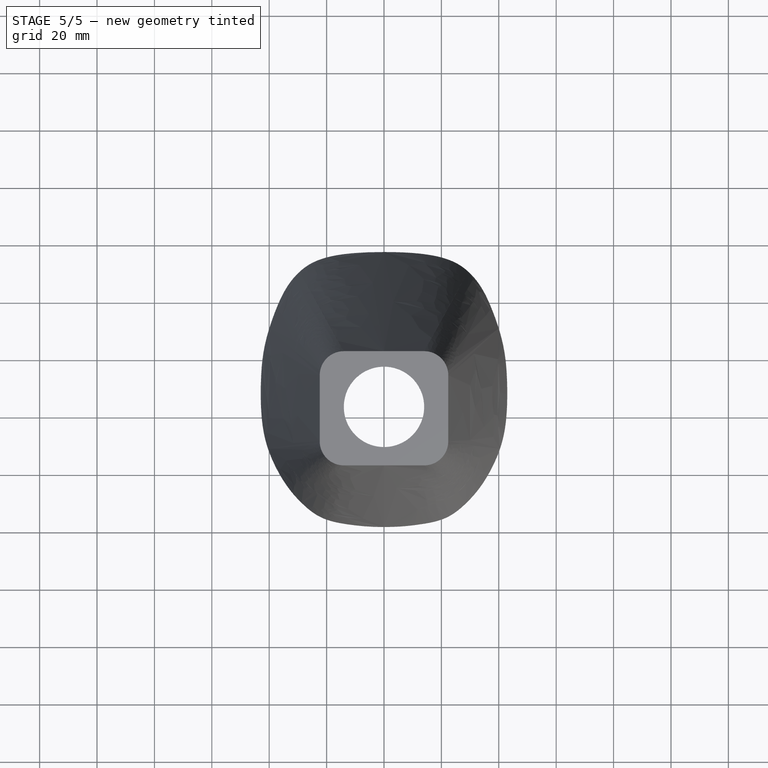
[diagram: stage 5 of 5 — top view after this stage's code; geometry added in this stage tinted green]
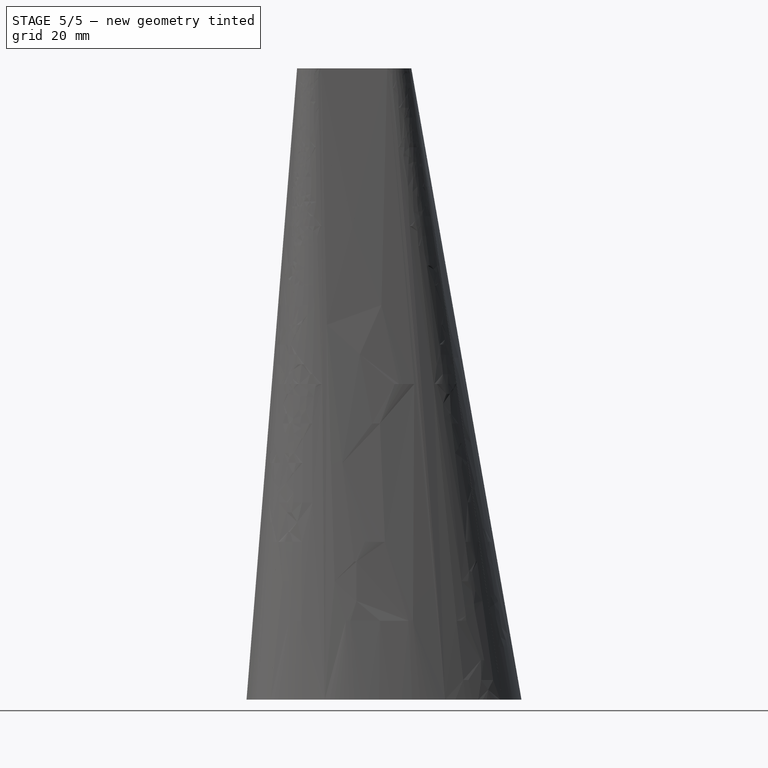
[diagram: stage 5 of 5 — right view after this stage's code; geometry added in this stage tinted green]
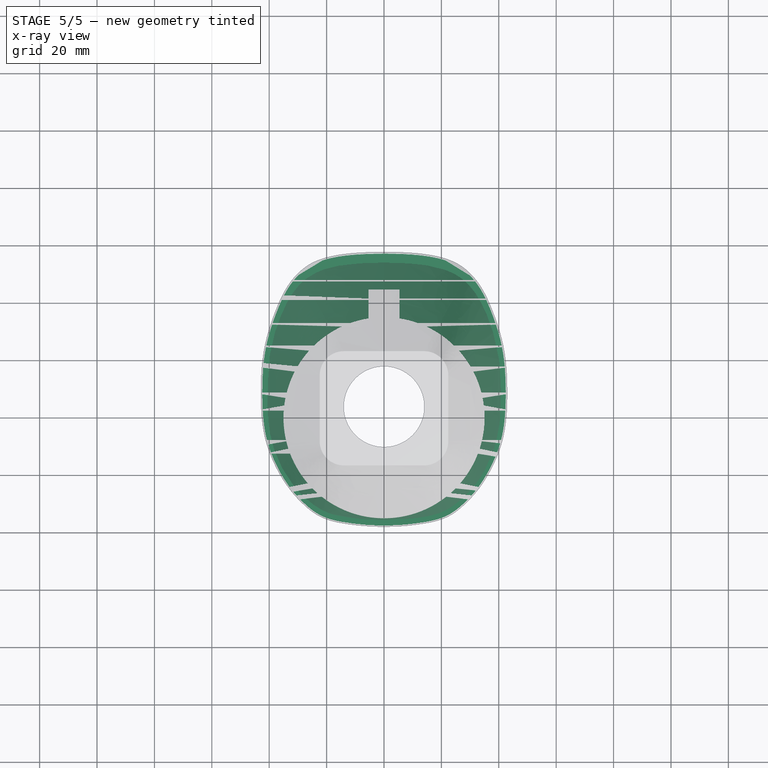
[diagram: stage 5 of 5 — x-ray composite at the top view; earlier geometry ghosted, this stage's added geometry solid]
FEATURE [PartDesign::Body] Body002
  Group = -> [Pad001,Sketch024]
  Origin = -> Origin002
  Placement = pos=(0,0,80) rot=(0,0,1;0rad)
  Tip = -> Pad001
FEATURE [Sketcher::SketchObject] Sketch025
  AttachmentOffset = pos=(0,0,80) rot=(0,0,1;0rad)
  FullyConstrained = false
  MapMode = 5
  Placement = pos=(0,0,80) rot=(0,0,1;0rad)
  Support = -> [XY_Plane019]
  sketch-geometry (28):
    g0-g13: Circle x14 (B-spline internal-alignment scaffolding for g14; pole/knot coordinates omitted)
    g14: BSplineCurve PolesCount=14 KnotsCount=12 Degree=3 IsPeriodic=0
    g15-g26: GeomPoint x12 (B-spline internal-alignment scaffolding for g14; pole/knot coordinates omitted)
    g27: BSplineCurve PolesCount=14 KnotsCount=12 Degree=3 IsPeriodic=0
  constraints (6):
    c: Weight(g0) = 1
    c: PointOnObject(g14,g-2)
    c: Equal(g0, g1-g13) x13
    c: PointOnObject(g14,g-2)
    c: InternalAlignment(g0-g13 -> g14) x14
    c: InternalAlignment(g15-g26 -> g14) x12
FEATURE [PartDesign::Pad] Pad002
  Direction = (0,0,1)
  Length = 1
  Length2 = 10
  Profile = -> Sketch025
  ReferenceAxis = -> Sketch025 [N_Axis]
  Type = 0
FEATURE [PartDesign::Body] Body003
  Group = -> [Sketch025,Pad002]
  Origin = -> Origin003
  Tip = -> Pad002
FEATURE [Sketcher::SketchObject] Sketch026
  AttachmentOffset = pos=(0,0,300) rot=(0,0,1;0rad)
  FullyConstrained = true
  MapMode = 5
  Placement = pos=(0,0,300) rot=(0,0,1;0rad)
  Support = -> [XY_Plane026]
  sketch-geometry (8):
    g0: LineSegment StartX=-14 StartY=19 StartZ=0 EndX=14 EndY=19 EndZ=0
    g1: LineSegment StartX=-14 StartY=-20 StartZ=0 EndX=14 EndY=-20 EndZ=0
    g2: LineSegment StartX=22 StartY=11 StartZ=0 EndX=22 EndY=-12 EndZ=0
    g3: LineSegment StartX=-22 StartY=11 StartZ=0 EndX=-22 EndY=-12 EndZ=0
    g4: ArcOfCircle CenterX=-14 CenterY=11 CenterZ=0 NormalX=0 NormalY=0 NormalZ=1 AngleXU=0 Radius=8 StartAngle=1.5708 EndAngle=3.14159
    g5: ArcOfCircle CenterX=14 CenterY=11 CenterZ=0 NormalX=0 NormalY=0 NormalZ=1 AngleXU=0 Radius=8 StartAngle=0 EndAngle=1.5708
    g6: ArcOfCircle CenterX=14 CenterY=-12 CenterZ=0 NormalX=0 NormalY=0 NormalZ=1 AngleXU=0 Radius=8 StartAngle=4.71239 EndAngle=6.28319
    g7: ArcOfCircle CenterX=-14 CenterY=-12 CenterZ=0 NormalX=0 NormalY=0 NormalZ=1 AngleXU=0 Radius=8 StartAngle=3.14159 EndAngle=4.71239
  constraints (20):
    c: Horizontal(g0)
    c: Horizontal(g1)
    c: Vertical(g2)
    c: Vertical(g3)
    c: Equal(g2,g3)
    c: Tangent(g0,g4) = 1.5708
    c: Tangent(g3,g4) = -1.5708
    c: Tangent(g0,g5) = 1.5708
    c: Tangent(g2,g5) = 1.5708
    c: Tangent(g2,g6) = 1.5708
    c: Tangent(g1,g6) = -1.5708
    c: Tangent(g3,g7) = -1.5708
    c: Tangent(g1,g7) = -1.5708
    c: DistanceX(g0,g-1) = 14
    c: DistanceX(g-1,g0) = 14
    c: DistanceX(g1,g-1) = 14
    c: DistanceX(g-1,g1) = 14
    c: DistanceY(g-1,g0) = 19
    c: DistanceY(g1,g-1) = 20
    c: DistanceX(g3,g-1) = 22
FEATURE [Sketcher::SketchObject] Sketch027
  AttachmentOffset = pos=(0,0,80) rot=(0,0,1;0rad)
  FullyConstrained = false
  MapMode = 5
  Placement = pos=(0,0,80) rot=(0,0,1;0rad)
  Support = -> [XY_Plane020]
  sketch-geometry (28):
    g0-g13: Circle x14 (B-spline internal-alignment scaffolding for g14; pole/knot coordinates omitted)
    g14: BSplineCurve PolesCount=14 KnotsCount=12 Degree=3 IsPeriodic=0
    g15-g26: GeomPoint x12 (B-spline internal-alignment scaffolding for g14; pole/knot coordinates omitted)
    g27: BSplineCurve PolesCount=14 KnotsCount=12 Degree=3 IsPeriodic=0
  constraints (6):
    c: Weight(g0) = 1
    c: PointOnObject(g14,g-2)
    c: Equal(g0, g1-g13) x13
    c: PointOnObject(g14,g-2)
    c: InternalAlignment(g0-g13 -> g14) x14
    c: InternalAlignment(g15-g26 -> g14) x12
FEATURE [PartDesign::AdditiveLoft] AdditiveLoft003
  Closed = false
  Profile = -> Sketch026
  Ruled = false
  Sections = -> [Sketch027]
FEATURE [Sketcher::SketchObject] Sketch028
  FullyConstrained = true
  MapMode = 5
  Support = -> [XY_Plane021]
  sketch-geometry (5):
    g0: LineSegment StartX=-5 StartY=44.255 StartZ=0 EndX=5 EndY=44.255 EndZ=0
    g1: LineSegment StartX=5 StartY=44.255 StartZ=0 EndX=5 EndY=34.255 EndZ=0
    g2: LineSegment StartX=5 StartY=34.255 StartZ=0 EndX=-5 EndY=34.255 EndZ=0
    g3: LineSegment StartX=-5 StartY=34.255 StartZ=0 EndX=-5 EndY=44.255 EndZ=0
    g4: ArcOfCircle CenterX=0 CenterY=0 CenterZ=0 NormalX=0 NormalY=0 NormalZ=1 AngleXU=0 Radius=34.618 StartAngle=1.71574 EndAngle=7.70904
  constraints (14):
    c: Coincident(g0,g1)
    c: Coincident(g1,g2)
    c: Coincident(g2,g3)
    c: Coincident(g3,g0)
    c: Horizontal(g0)
    c: Horizontal(g2)
    c: Vertical(g1)
    c: Vertical(g3)
    c: DistanceX(g2,g2) = 10
    c: DistanceY(g1,g1) = 10
    c: DistanceY(g-1,g1) = 34.255
    c: Coincident(g4,g-1)
    c: Coincident(g4,g2)
    c: Coincident(g4,g1)
FEATURE [PartDesign::Pad] Pad003
  Direction = (0,0,1)
  Length = 30
  Length2 = 10
  Profile = -> Sketch028
  ReferenceAxis = -> Sketch028 [N_Axis]
  Type = 0
FEATURE [PartDesign::Body] AdditiveLoft003Body
  Group = -> [Sketch026,AdditiveLoft003]
  Origin = -> Origin008
  Tip = -> AdditiveLoft003
FEATURE [Part::MultiCommon] Common002
  Shapes = -> [AdditiveLoft003Body,Body003]
FEATURE [Part::Cut] Cut001
  Base = -> Common002
  Tool = -> Body004
FEATURE [Part::MultiFuse] Fusion004
  Shapes = -> [Fusion003,Body]
FEATURE [Part::MultiFuse] Fusion005
  Shapes = -> [Cut001,Fusion004]
FEATURE [App::Part] Part
  Group = -> [Body,Body003,Body002,Body004,Body001,Common001,Cut001,Common002,Cut,Common,Fusion,Array001,Box001,Array002,Box002,Fusion001,Cut002,Fusion003,Common003,Fusion002,Body007,Fusion004,AdditiveLoft001Body,AdditiveLoft003Body,AdditiveLoft002Body,Body005,Body006,Box,Fusion005]
  Origin = -> Origin005
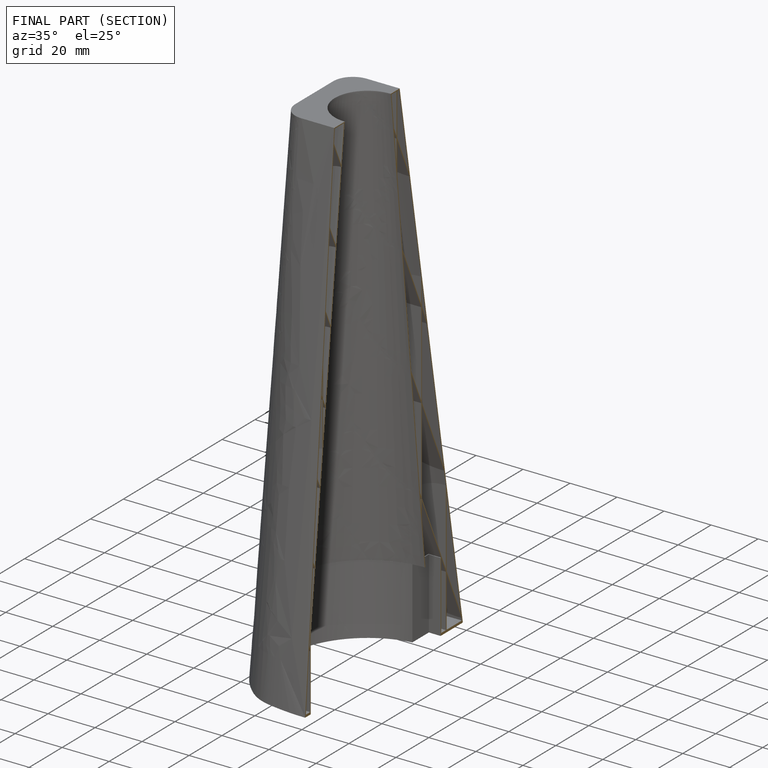
[diagram: finished part — half-section view (interior)]
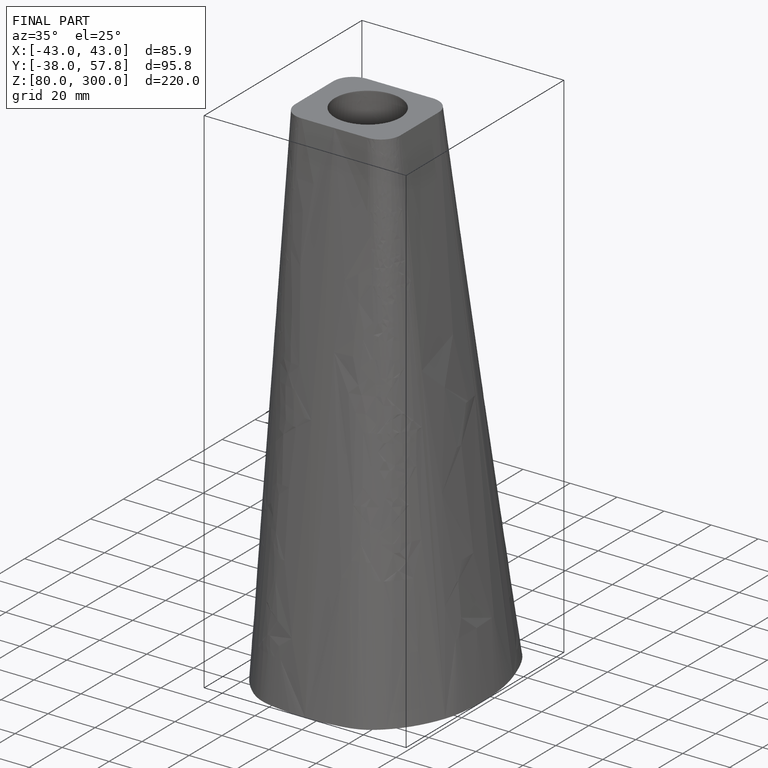
[diagram: finished part — iso view with bounding-box wireframe]
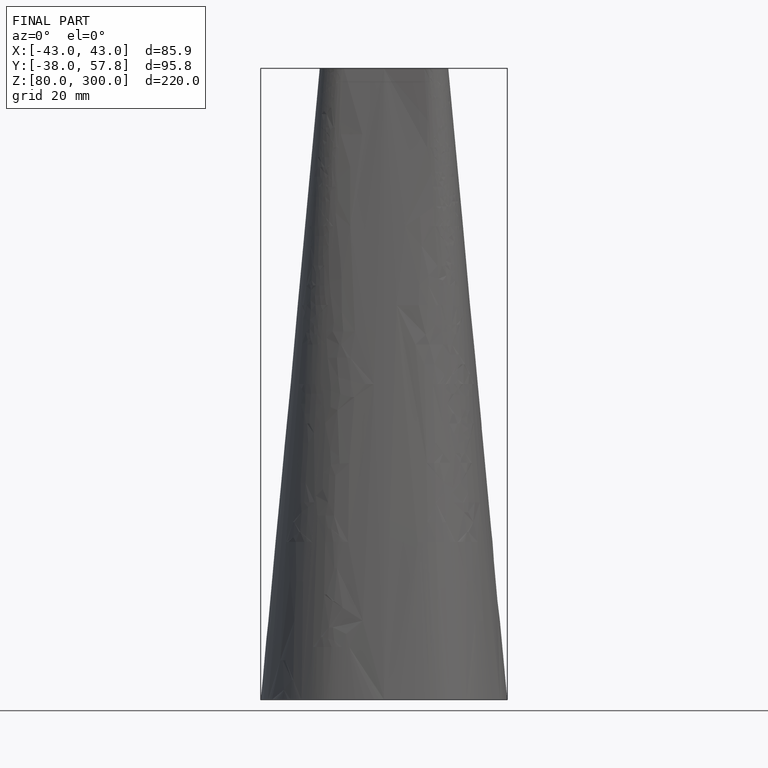
[diagram: finished part — front view with bounding-box wireframe]
